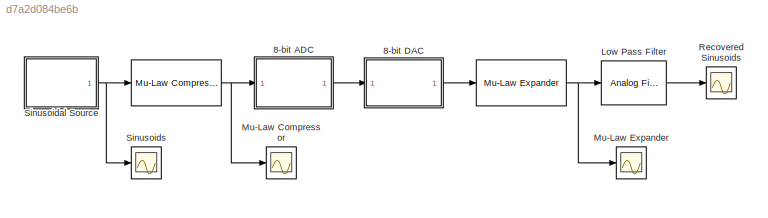
MODEL slx_d7a2d084be6b
KIND model
BLOCK [Reference]      REF=commsrccod2/Mu-Law
Compressor
  Ports = [1, 1]
  SourceBlock = commsrccod2/Mu-Law\nCompressor
  SourceType = Mu-Law Compressor
  V = 1.28
  mu = 255
BLOCK [Reference]       REF=commsrccod2/Mu-Law
Expander
  Ports = [1, 1]
  SourceBlock = commsrccod2/Mu-Law\nExpander
  SourceType = Mu-Law Expander
  V = 1.28
  mu = 255
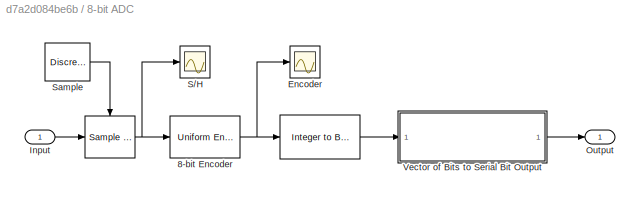
BLOCK [SubSystem] 8-bit ADC
  Ports = [1, 1]
  RequestExecContextInheritance = off
BLOCK [Reference] 8-bit ADC/   REF=commutil2/Integer to Bit
Converter
  Ports = [1, 1]
  SourceBlock = commutil2/Integer to Bit\nConverter
  SourceType = Integer to Bit Converter
  bitOrder = LSB first
  nbits = 8
  outDtype = uint8
  signedInputValues = Unsigned
BLOCK [Reference] 8-bit ADC/     REF=dspsigops/Sample
and Hold
  Ports = [1, 1, 0, 1]
  SourceBlock = dspsigops/Sample\nand Hold
  SourceType = Sample and Hold
  initCond = 0
  latchinput = off
  trig = Rising edge
BLOCK [Reference] 8-bit ADC/8-bit Encoder  REF=dspquant2/Uniform
Encoder
  Ports = [1, 1]
  SourceBlock = dspquant2/Uniform\nEncoder
  SourceType = Uniform Encoder
  bits = 8
  otype = Unsigned integer
  peak = 1.28
BLOCK [Scope] 8-bit ADC/Encoder
  DataFormat = StructureWithTime
  Floating = off
  NumInputPorts = 1
  Ports = [1]
  SampleTime = 0
  SaveName = ScopeData3
  ShowLegends = off
  YMax = 275
  YMin = -10
BLOCK [Inport] 8-bit ADC/Input
  IconDisplay = Port number
BLOCK [Outport] 8-bit ADC/Output
  IconDisplay = Port number
BLOCK [Scope] 8-bit ADC/S//H
  DataFormat = StructureWithTime
  Floating = off
  NumInputPorts = 1
  Ports = [1]
  SampleTime = 0
  SaveName = ScopeData6
  ShowLegends = off
  YMax = 1.5
  YMin = -1.5
BLOCK [DiscretePulseGenerator] 8-bit ADC/Sample
  Period = 80
  Ports = [0, 1]
  PulseWidth = 8
  SampleTime = 1.5625e-6
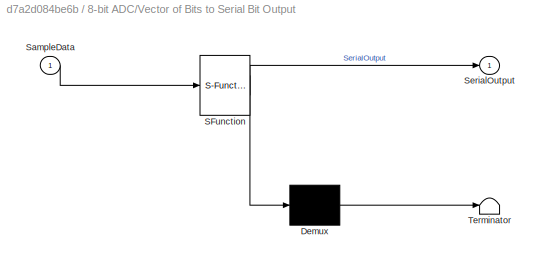
BLOCK [SubSystem] 8-bit ADC/Vector of Bits to Serial Bit Output
  ErrorFcn = Stateflow.Translate.translate
  PermitHierarchicalResolution = ExplicitOnly
  Ports = [1, 1]
  RequestExecContextInheritance = off
  SFBlockType = MATLAB Function
  TreatAsAtomicUnit = on
BLOCK [Demux] 8-bit ADC/Vector of Bits to Serial Bit Output/ Demux 
  Outputs = 1
  Ports = [1, 1]
BLOCK [S-Function] 8-bit ADC/Vector of Bits to Serial Bit Output/ SFunction 
  EnableBusSupport = on
  FunctionName = sf_sfun
  PortCounts = [1 2]
  Ports = [1, 2]
  Tag = Stateflow S-Function Fig424 2
BLOCK [Terminator] 8-bit ADC/Vector of Bits to Serial Bit Output/ Terminator 
BLOCK [Inport] 8-bit ADC/Vector of Bits to Serial Bit Output/SampleData
  IconDisplay = Port number
BLOCK [Outport] 8-bit ADC/Vector of Bits to Serial Bit Output/SerialOutput
  IconDisplay = Port number
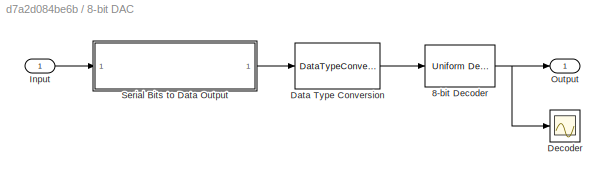
BLOCK [SubSystem] 8-bit DAC
  Ports = [1, 1]
  RequestExecContextInheritance = off
BLOCK [Reference] 8-bit DAC/8-bit Decoder  REF=dspquant2/Uniform
Decoder
  Ports = [1, 1]
  SourceBlock = dspquant2/Uniform\nDecoder
  SourceType = Uniform Decoder
  bits = 8
  otype = Double
  overflowMode = Saturate
  peak = 1.28
BLOCK [DataTypeConversion] 8-bit DAC/Data Type Conversion
  LockScale = on
  OutDataTypeStr = fixdt('uint8', 'DataTypeOverride', 'Off')
  RndMeth = Floor
  SaturateOnIntegerOverflow = off
BLOCK [Scope] 8-bit DAC/Decoder
  DataFormat = StructureWithTime
  Floating = off
  NumInputPorts = 1
  Ports = [1]
  SampleTime = 0
  SaveName = ScopeData5
  ShowLegends = off
  YMax = 1.5
  YMin = -1.5
BLOCK [Inport] 8-bit DAC/Input
  IconDisplay = Port number
BLOCK [Outport] 8-bit DAC/Output
  IconDisplay = Port number
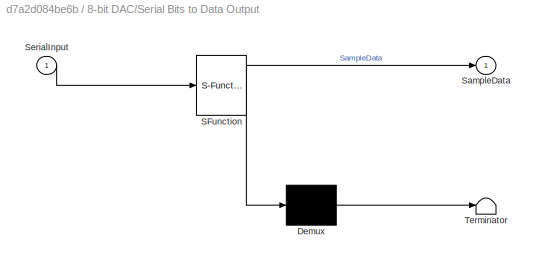
BLOCK [SubSystem] 8-bit DAC/Serial Bits to Data Output
  ErrorFcn = Stateflow.Translate.translate
  PermitHierarchicalResolution = ExplicitOnly
  Ports = [1, 1]
  RequestExecContextInheritance = off
  SFBlockType = MATLAB Function
  TreatAsAtomicUnit = on
BLOCK [Demux] 8-bit DAC/Serial Bits to Data Output/ Demux 
  Outputs = 1
  Ports = [1, 1]
BLOCK [S-Function] 8-bit DAC/Serial Bits to Data Output/ SFunction 
  EnableBusSupport = on
  FunctionName = sf_sfun
  PortCounts = [1 2]
  Ports = [1, 2]
  Tag = Stateflow S-Function Fig424 1
BLOCK [Terminator] 8-bit DAC/Serial Bits to Data Output/ Terminator 
BLOCK [Outport] 8-bit DAC/Serial Bits to Data Output/SampleData
  IconDisplay = Port number
BLOCK [Inport] 8-bit DAC/Serial Bits to Data Output/SerialInput
  IconDisplay = Port number
BLOCK [Reference] Low Pass Filter  REF=dsparch4/Analog
Filter Design
  N = 9
  Ports = [1, 1]
  Rp = 2
  Rs = 40
  SourceBlock = dsparch4/Analog\nFilter Design
  SourceType = Analog Filter Design
  Whi = 80
  Wlo = 7500*pi
  filttype = Lowpass
  method = Butterworth
BLOCK [Scope] Mu-Law Compressor
  DataFormat = StructureWithTime
  Floating = off
  NumInputPorts = 1
  Ports = [1]
  SampleTime = 0
  SaveName = ScopeData1
  ShowLegends = off
  YMax = 1.5
  YMin = -1.5
BLOCK [Scope] Mu-Law Expander
  DataFormat = StructureWithTime
  Floating = off
  NumInputPorts = 1
  Ports = [1]
  SampleTime = 0
  ShowLegends = off
  YMax = 1.5
  YMin = -1.5
BLOCK [Scope] Recovered Sinusoids
  DataFormat = StructureWithTime
  Floating = off
  NumInputPorts = 1
  Ports = [1]
  SampleTime = 0
  SaveName = ScopeData4
  ShowLegends = off
  YMax = 1.5
  YMin = -1.5
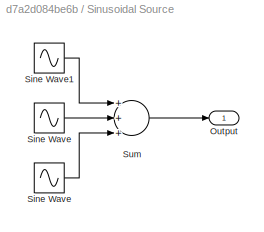
BLOCK [SubSystem] Sinusoidal Source
  Ports = [0, 1]
  RequestExecContextInheritance = off
BLOCK [Sin] Sinusoidal Source/ Sine Wave 
  Amplitude = 0.2
  Frequency = 5000*pi
  Ports = [0, 1]
  SampleTime = 1.5625e-6
BLOCK [Outport] Sinusoidal Source/Output
  IconDisplay = Port number
BLOCK [Sin] Sinusoidal Source/Sine Wave 
  Amplitude = 0.5
  Frequency = 3000*pi
  Ports = [0, 1]
  SampleTime = 1.5625e-6
BLOCK [Sin] Sinusoidal Source/Sine Wave1
  Frequency = 1000*pi
  Ports = [0, 1]
  SampleTime = 1.5625e-6
BLOCK [Sum] Sinusoidal Source/Sum
  InputSameDT = off
  Inputs = +++
  OutDataTypeStr = Inherit: Inherit via internal rule
  Ports = [3, 1]
  SaturateOnIntegerOverflow = off
BLOCK [Scope] Sinusoids
  DataFormat = StructureWithTime
  Floating = off
  NumInputPorts = 1
  Ports = [1]
  SampleTime = 0
  SaveName = ScopeData2
  ShowLegends = off
  YMax = 1.5
  YMin = -1.5
NET     :1 -> Low Pass Filter:1, Mu-Law Expander:1
NET    :1 -> 8-bit ADC:1, Mu-Law Compressor:1
NET 8-bit ADC/   :1 -> 8-bit ADC/8-bit Encoder:1, 8-bit ADC/S//H:1
LINE 8-bit ADC/ :1 -> 8-bit ADC/Vector of Bits to Serial Bit Output:1
NET 8-bit ADC/8-bit Encoder:1 -> 8-bit ADC/ :1, 8-bit ADC/Encoder:1
LINE 8-bit ADC/Input:1 -> 8-bit ADC/   :1
LINE 8-bit ADC/Sample:1 -> 8-bit ADC/   :trigger
LINE 8-bit ADC/Vector of Bits to Serial Bit Output:1 -> 8-bit ADC/Output:1
LINE 8-bit ADC:1 -> 8-bit DAC:1
NET 8-bit DAC/8-bit Decoder:1 -> 8-bit DAC/Decoder:1, 8-bit DAC/Output:1
LINE 8-bit DAC/Data Type Conversion:1 -> 8-bit DAC/8-bit Decoder:1
LINE 8-bit DAC/Input:1 -> 8-bit DAC/Serial Bits to Data Output:1
LINE 8-bit DAC/Serial Bits to Data Output:1 -> 8-bit DAC/Data Type Conversion:1
LINE 8-bit DAC:1 ->     :1
LINE Low Pass Filter:1 -> Recovered Sinusoids:1
LINE Sinusoidal Source/ Sine Wave :1 -> Sinusoidal Source/Sum:3
LINE Sinusoidal Source/Sine Wave :1 -> Sinusoidal Source/Sum:2
LINE Sinusoidal Source/Sine Wave1:1 -> Sinusoidal Source/Sum:1
LINE Sinusoidal Source/Sum:1 -> Sinusoidal Source/Output:1
NET Sinusoidal Source:1 ->    :1, Sinusoids:1
note: NET lines group one-source signal fan-out (src -> all destinations, sorted); 1:1 wires keep LINE
CHART 8-bit DAC/Serial Bits to
Data Output states=1 transitions=1
  STATE_LABEL 'eML_blk_kernel()'
  STATE_LABEL 'SCRIPT:\nfunction SampleData = fcn(SerialInput)\n%#codegen\n\npersistent SmpDat SmpNum SmpDatOld\n\nif isempty(SmpNum)\n    SmpNum = 0;\n    SmpDat = 0;\n    SmpDatOld = 0;\n    SampleData = 0; %#ok<NASGU>\nend\n\nSmpNum = SmpNum + 1;\nif (SmpNum == 9)\n    SmpNum = 1;\n    SampleData = SmpDat;\n    SmpDatOld = SmpDat;\n    SmpDat = SerialInput;\nelse\n    SampleData = SmpDatOld;\n    SmpDat = SmpDat + SerialInput*2^(...<+21ch>'
CHART 8-bit ADC/Vector of Bits to
Serial Bit Output states=1 transitions=1
  STATE_LABEL 'eML_blk_kernel()'
  STATE_LABEL 'SCRIPT:\nfunction SerialOutput = fcn(SampleData)\n%#codegen\npersistent SmpNum\n\nif isempty(SmpNum)\n    SmpNum = 1;\nend\n\nSerialOutput = SampleData(SmpNum);\nSmpNum = SmpNum + 1;\nif (SmpNum == 9)\n    SmpNum = 1;\nend\n\nend\n\n'
